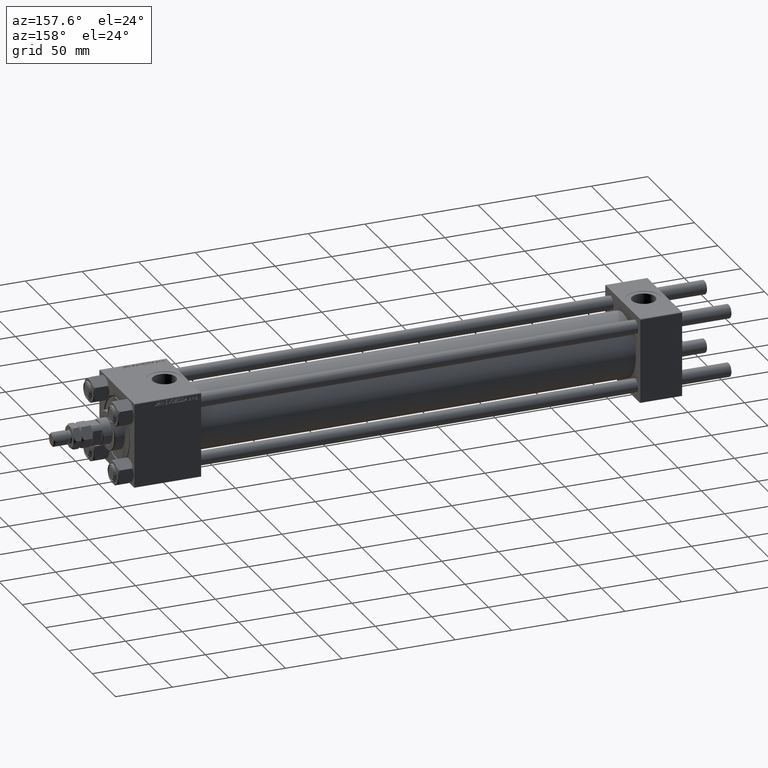
[diagram: clean part render]
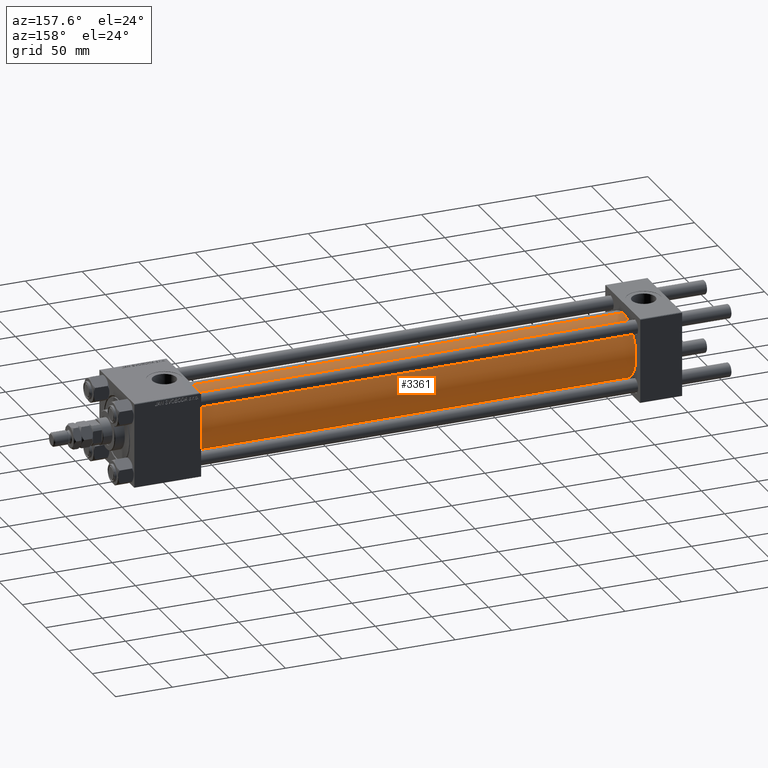
[diagram: same view with one face highlighted and labeled with its STEP entity id]
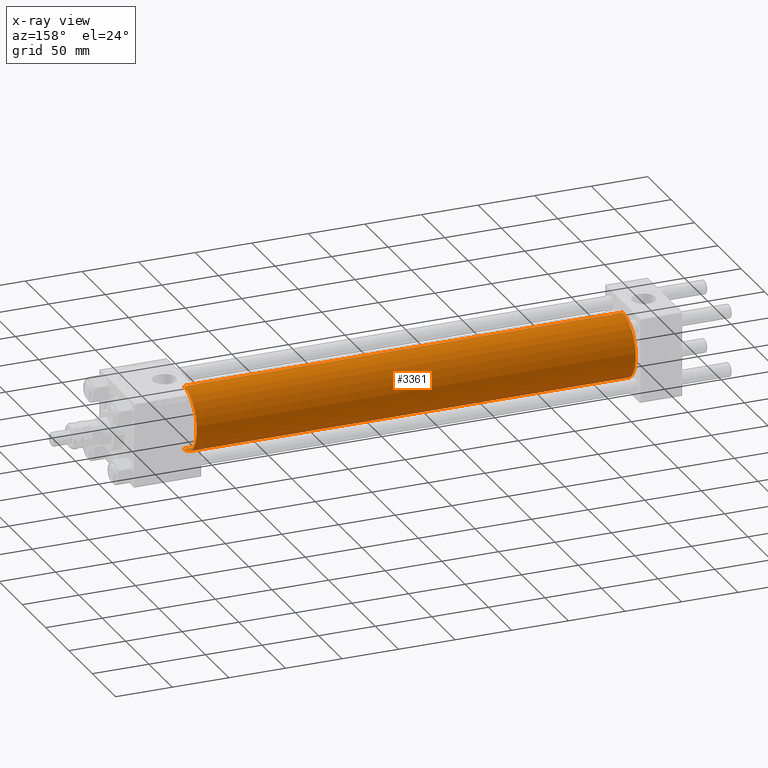
[diagram: x-ray of the same camera — body ghosted, the highlighted face saturated]
A machine part, auxiliary view. The second image highlights one B-rep face of the part: STEP entity #3361.
The next image is the same camera in x-ray: the body ghosted, the highlighted face saturated — about 0% of this face is hidden behind the body in this view.
In plain terms, the highlighted cylindrical surface (edge-blend (fillet) strip) has radius 28 mm, axis along (-1, -0, -0).
Its self-contained STEP definition (entity closure, byte-faithful):
#868 = DIRECTION ( 'NONE',  ( 0.000000000000000000, 0.000000000000000000, 1.000000000000000000 ) ) ;
#1378 = CYLINDRICAL_SURFACE ( 'NONE', #33143, 28.00000000000000000 ) ;
#2037 = ORIENTED_EDGE ( 'NONE', *, *, #42137, .T. ) ;
#3361 = ADVANCED_FACE ( 'NONE', ( #44695 ), #1378, .T. ) ;
#3935 = AXIS2_PLACEMENT_3D ( 'NONE', #36630, #23936, #16912 ) ;
#4265 = CARTESIAN_POINT ( 'NONE',  ( 425.0000000000000000, 3.429011037612588487E-15, -28.00000000000000000 ) ) ;
#5266 = DIRECTION ( 'NONE',  ( -1.000000000000000000, -0.000000000000000000, -0.000000000000000000 ) ) ;
#7756 = VERTEX_POINT ( 'NONE', #9661 ) ;
#9661 = CARTESIAN_POINT ( 'NONE',  ( 36.99999999999997868, 3.429011037612588487E-15, -28.00000000000000000 ) ) ;
#9895 = ORIENTED_EDGE ( 'NONE', *, *, #15200, .F. ) ;
#10645 = VERTEX_POINT ( 'NONE', #29004 ) ;
#10908 = CARTESIAN_POINT ( 'NONE',  ( 425.0000000000000000, 0.000000000000000000, 28.00000000000000000 ) ) ;
#11304 = LINE ( 'NONE', #34903, #30819 ) ;
#12130 = CIRCLE ( 'NONE', #50206, 28.00000000000000000 ) ;
#15200 = EDGE_CURVE ( 'NONE', #46532, #10645, #26984, .T. ) ;
#16912 = DIRECTION ( 'NONE',  ( 0.000000000000000000, 0.000000000000000000, -1.000000000000000000 ) ) ;
#18431 = DIRECTION ( 'NONE',  ( -1.000000000000000000, -0.000000000000000000, -0.000000000000000000 ) ) ;
#22613 = VECTOR ( 'NONE', #18431, 1000.000000000000000 ) ;
#22732 = ORIENTED_EDGE ( 'NONE', *, *, #45494, .F. ) ;
#22959 = DIRECTION ( 'NONE',  ( -1.000000000000000000, -0.000000000000000000, -0.000000000000000000 ) ) ;
#23936 = DIRECTION ( 'NONE',  ( 1.000000000000000000, 0.000000000000000000, 0.000000000000000000 ) ) ;
#26053 = ORIENTED_EDGE ( 'NONE', *, *, #27955, .T. ) ;
#26984 = LINE ( 'NONE', #10908, #22613 ) ;
#27955 = EDGE_CURVE ( 'NONE', #29863, #7756, #11304, .T. ) ;
#29004 = CARTESIAN_POINT ( 'NONE',  ( 36.99999999999997868, 0.000000000000000000, 28.00000000000000000 ) ) ;
#29166 = DIRECTION ( 'NONE',  ( 0.000000000000000000, 0.000000000000000000, 1.000000000000000000 ) ) ;
#29863 = VERTEX_POINT ( 'NONE', #4265 ) ;
#30578 = EDGE_LOOP ( 'NONE', ( #22732, #26053, #2037, #9895 ) ) ;
#30819 = VECTOR ( 'NONE', #22959, 1000.000000000000000 ) ;
#33143 = AXIS2_PLACEMENT_3D ( 'NONE', #40055, #5266, #868 ) ;
#34903 = CARTESIAN_POINT ( 'NONE',  ( 425.0000000000000000, 3.429011037612588487E-15, -28.00000000000000000 ) ) ;
#35562 = CARTESIAN_POINT ( 'NONE',  ( 425.0000000000000000, 0.000000000000000000, 28.00000000000000000 ) ) ;
#36630 = CARTESIAN_POINT ( 'NONE',  ( 425.0000000000000000, 0.000000000000000000, 0.000000000000000000 ) ) ;
#39388 = DIRECTION ( 'NONE',  ( 1.000000000000000000, -0.000000000000000000, 0.000000000000000000 ) ) ;
#40055 = CARTESIAN_POINT ( 'NONE',  ( 425.0000000000000000, 0.000000000000000000, 0.000000000000000000 ) ) ;
#42137 = EDGE_CURVE ( 'NONE', #7756, #10645, #12130, .T. ) ;
#44695 = FACE_OUTER_BOUND ( 'NONE', #30578, .T. ) ;
#45319 = CIRCLE ( 'NONE', #3935, 28.00000000000000000 ) ;
#45494 = EDGE_CURVE ( 'NONE', #29863, #46532, #45319, .T. ) ;
#46532 = VERTEX_POINT ( 'NONE', #35562 ) ;
#48884 = CARTESIAN_POINT ( 'NONE',  ( 36.99999999999997868, 0.000000000000000000, 0.000000000000000000 ) ) ;
#50206 = AXIS2_PLACEMENT_3D ( 'NONE', #48884, #39388, #29166 ) ;